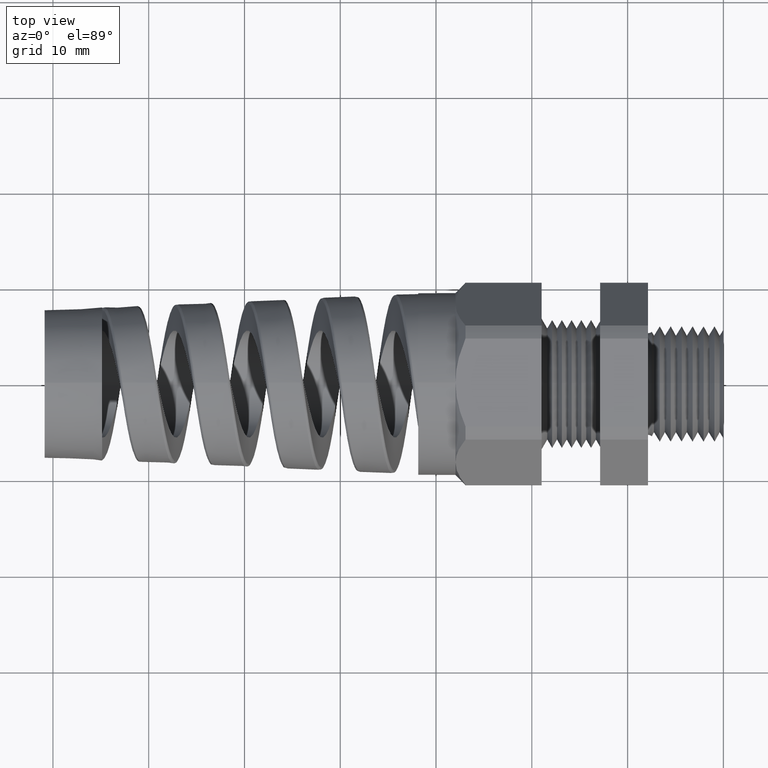
[diagram: clean part render]
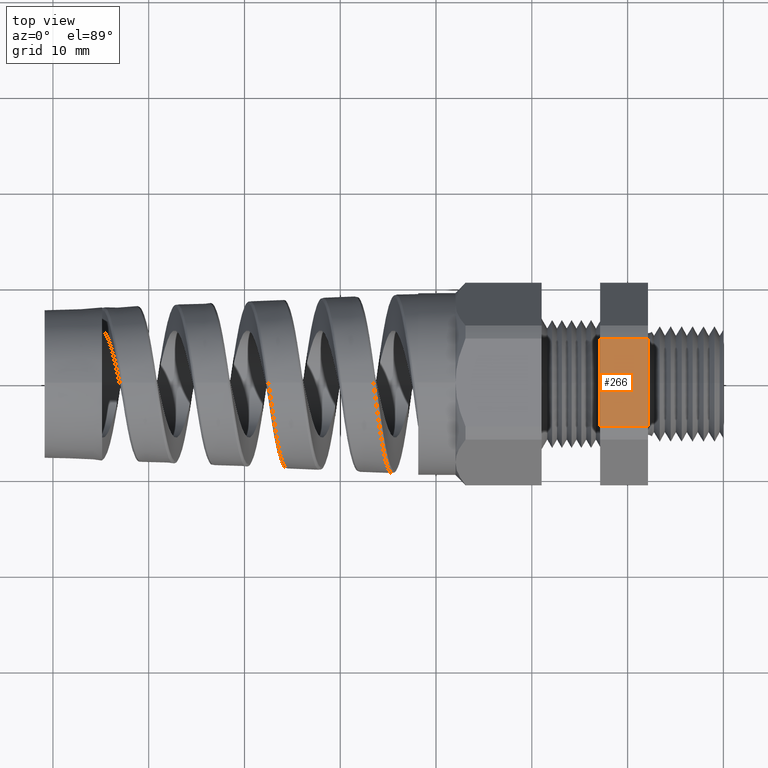
[diagram: same view with one face highlighted and labeled with its STEP entity id]
A machine part, top view. The second image highlights one B-rep face of the part: STEP entity #266.
In plain terms, the highlighted planar face has unit normal (0, 0, 1).
Its self-contained STEP definition (entity closure, byte-faithful):
#234 = VERTEX_POINT ( 'NONE', #1145 ) ;
#236 = EDGE_CURVE ( 'NONE', #234, #237, #1144, .T. ) ;
#237 = VERTEX_POINT ( 'NONE', #1140 ) ;
#266 = ADVANCED_FACE ( 'NONE', ( #1173 ), #1172, .T. ) ;
#267 = EDGE_LOOP ( 'NONE', ( #268, #269, #270, #314 ) ) ;
#268 = ORIENTED_EDGE ( 'NONE', *, *, #283, .T. ) ;
#269 = ORIENTED_EDGE ( 'NONE', *, *, #236, .F. ) ;
#270 = ORIENTED_EDGE ( 'NONE', *, *, #271, .F. ) ;
#271 = EDGE_CURVE ( 'NONE', #8749, #234, #1167, .T. ) ;
#283 = EDGE_CURVE ( 'NONE', #8751, #237, #1154, .T. ) ;
#314 = ORIENTED_EDGE ( 'NONE', *, *, #8756, .F. ) ;
#1140 = CARTESIAN_POINT ( 'NONE',  ( -0.5068503937007874400, 0.1806628420566886700, 0.3749999999999999400 ) ) ;
#1141 = DIRECTION ( 'NONE',  ( 0.0000000000000000000, 1.000000000000000000, 0.0000000000000000000 ) ) ;
#1142 = VECTOR ( 'NONE', #1141, 39.37007874015748100 ) ;
#1143 = CARTESIAN_POINT ( 'NONE',  ( -0.5068503937007874400, 0.7500000000000002200, 0.3749999999999999400 ) ) ;
#1144 = LINE ( 'NONE', #1143, #1142 ) ;
#1145 = CARTESIAN_POINT ( 'NONE',  ( -0.5068503937007874400, -0.1806628420566886700, 0.3749999999999999400 ) ) ;
#1147 = VECTOR ( 'NONE', #1211, 39.37007874015748100 ) ;
#1148 = CARTESIAN_POINT ( 'NONE',  ( 0.0000000000000000000, 0.1806628420566886700, 0.3749999999999999400 ) ) ;
#1154 = LINE ( 'NONE', #1148, #1147 ) ;
#1164 = DIRECTION ( 'NONE',  ( -1.000000000000000000, 0.0000000000000000000, 0.0000000000000000000 ) ) ;
#1165 = VECTOR ( 'NONE', #1164, 39.37007874015748100 ) ;
#1166 = CARTESIAN_POINT ( 'NONE',  ( 0.0000000000000000000, -0.1806628420566886700, 0.3749999999999999400 ) ) ;
#1167 = LINE ( 'NONE', #1166, #1165 ) ;
#1168 = DIRECTION ( 'NONE',  ( 1.000000000000000000, 0.0000000000000000000, 0.0000000000000000000 ) ) ;
#1169 = DIRECTION ( 'NONE',  ( 0.0000000000000000000, 0.0000000000000000000, 1.000000000000000000 ) ) ;
#1170 = CARTESIAN_POINT ( 'NONE',  ( 0.0000000000000000000, -0.1806628420566886700, 0.3749999999999999400 ) ) ;
#1171 = AXIS2_PLACEMENT_3D ( 'NONE', #1170, #1169, #1168 ) ;
#1172 = PLANE ( 'NONE',  #1171 ) ;
#1173 = FACE_OUTER_BOUND ( 'NONE', #267, .T. ) ;
#1211 = DIRECTION ( 'NONE',  ( -1.000000000000000000, 0.0000000000000000000, 0.0000000000000000000 ) ) ;
#5780 = DIRECTION ( 'NONE',  ( 0.0000000000000000000, -1.000000000000000000, 0.0000000000000000000 ) ) ;
#5781 = VECTOR ( 'NONE', #5780, 39.37007874015748100 ) ;
#5782 = CARTESIAN_POINT ( 'NONE',  ( -0.3100000000000000000, 0.7500000000000002200, 0.3749999999999999400 ) ) ;
#5783 = LINE ( 'NONE', #5782, #5781 ) ;
#5799 = CARTESIAN_POINT ( 'NONE',  ( -0.3100000000000000000, 0.1806628420566886700, 0.3749999999999999400 ) ) ;
#5801 = CARTESIAN_POINT ( 'NONE',  ( -0.3100000000000000000, -0.1806628420566886700, 0.3749999999999999400 ) ) ;
#8749 = VERTEX_POINT ( 'NONE', #5801 ) ;
#8751 = VERTEX_POINT ( 'NONE', #5799 ) ;
#8756 = EDGE_CURVE ( 'NONE', #8751, #8749, #5783, .T. ) ;